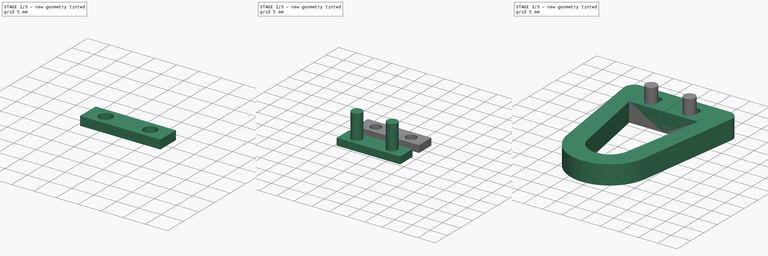
[diagram: build sequence overview — one tinted view per stage of 3, left to right]
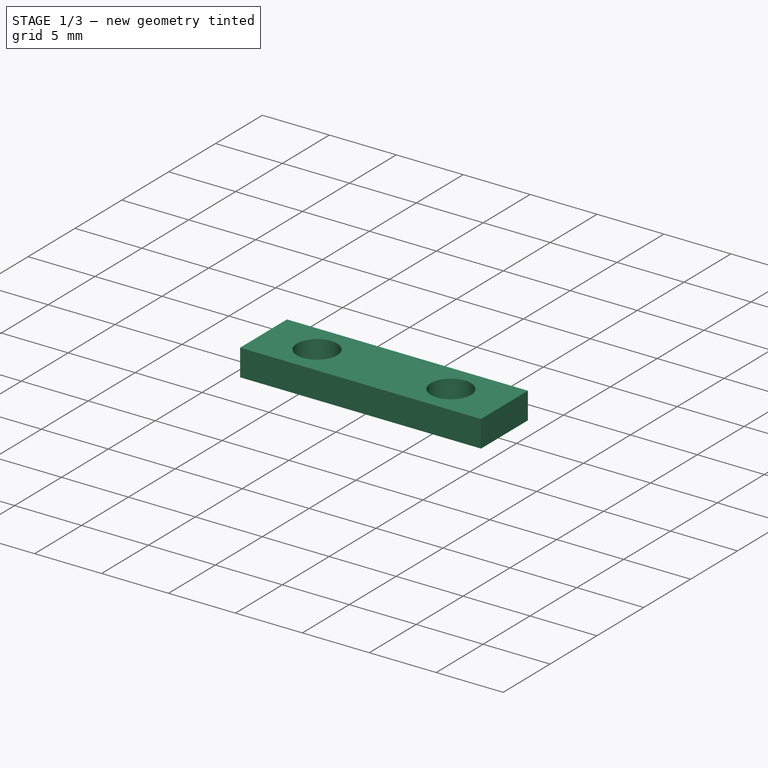
[diagram: stage 1 of 3 — iso view after this stage's code; geometry added in this stage tinted green]
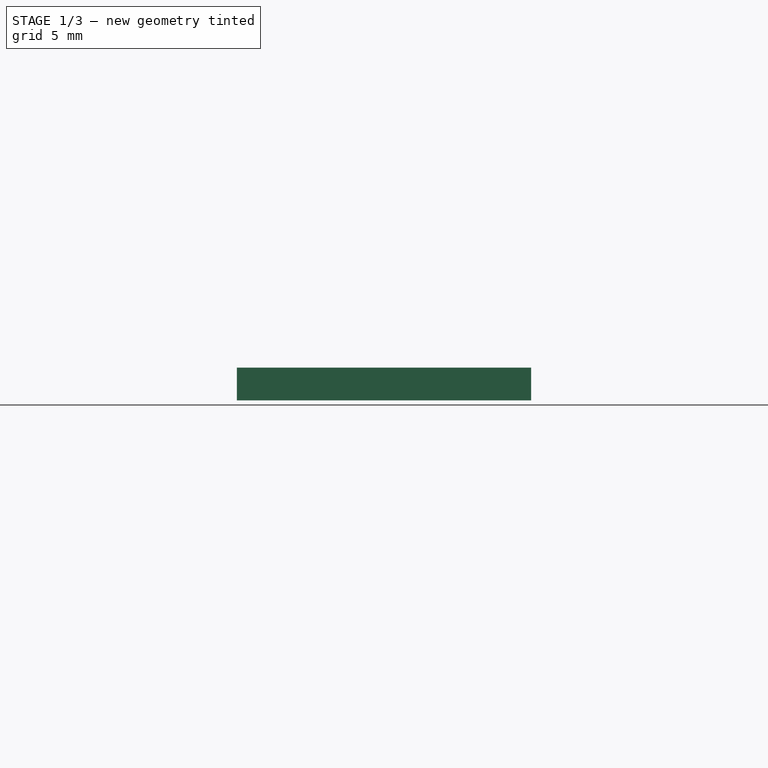
[diagram: stage 1 of 3 — front view after this stage's code; geometry added in this stage tinted green]
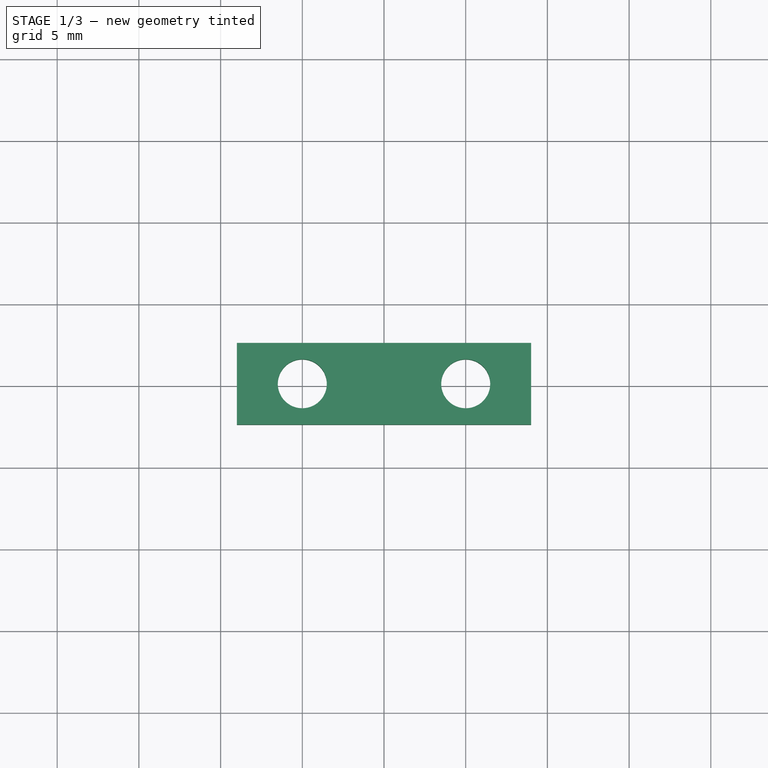
[diagram: stage 1 of 3 — top view after this stage's code; geometry added in this stage tinted green]
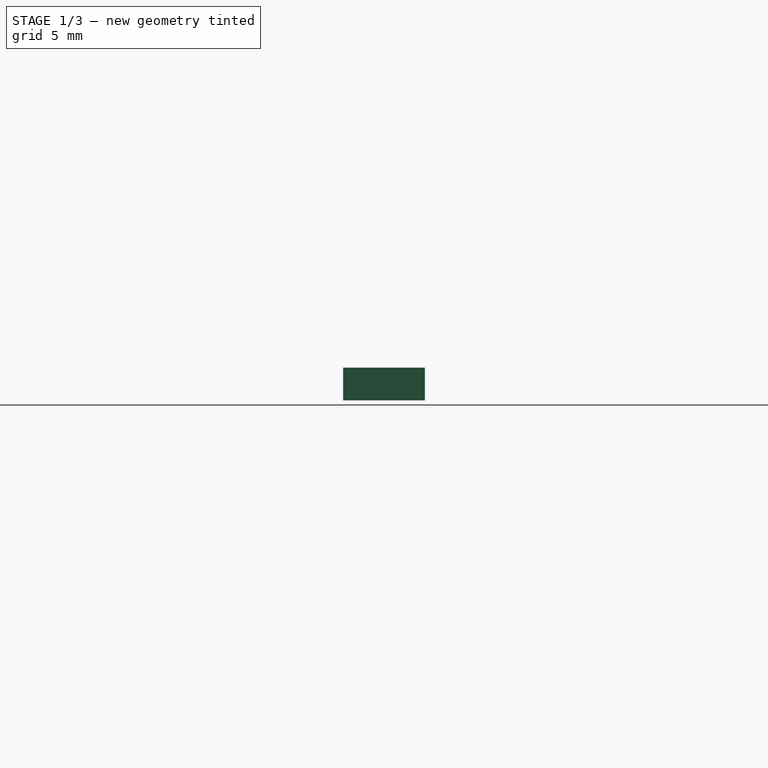
[diagram: stage 1 of 3 — right view after this stage's code; geometry added in this stage tinted green]
FCSTD DOCUMENT  (FreeCAD 0.20R25352 (Git))
Label: battery fastener
License: All rights reserved
LicenseURL: http://en.wikipedia.org/wiki/All_rights_reserved
objects: Sketcher::SketchObject×6, PartDesign::Pad×4, PartDesign::Body×3, PartDesign::Pocket×2
note: 21 computed .brp shape members not serialized (recipe doc carries the construction recipe); baked Part::Feature solids carry a one-line shape summary decoded from their .brp

FEATURE [PartDesign::Body] Body001
  Group = -> [Sketch002,Pad001,Sketch003,Pad002]
  Origin = -> Origin001
  Placement = pos=(0,27,10) rot=(0,0,1;0rad)
  Tip = -> Pad002
FEATURE [Sketcher::SketchObject] Sketch004
  FullyConstrained = false
  MapMode = 5
  Support = -> [XY_Plane002]
  sketch-geometry (4):
    g0: LineSegment StartX=-9 StartY=32.633 StartZ=0 EndX=9 EndY=32.633 EndZ=0
    g1: LineSegment StartX=9 StartY=32.633 StartZ=0 EndX=9 EndY=27.633 EndZ=0
    g2: LineSegment StartX=9 StartY=27.633 StartZ=0 EndX=-9 EndY=27.633 EndZ=0
    g3: LineSegment StartX=-9 StartY=27.633 StartZ=0 EndX=-9 EndY=32.633 EndZ=0
  constraints (10):
    c: Coincident(g0,g1)
    c: Coincident(g1,g2)
    c: Coincident(g2,g3)
    c: Coincident(g3,g0)
    c: Horizontal(g2)
    c: Vertical(g1)
    c: Vertical(g3)
    c: DistanceX(g2,g2) = 18
    c: DistanceY(g1,g1) = 5
    c: Symmetric(g0,g0,g-2)
FEATURE [PartDesign::Pad] Pad003
  Direction = (0,0,1)
  Length = 2
  Length2 = 100
  Profile = -> Sketch004
  Type = 0
FEATURE [Sketcher::SketchObject] Sketch005
  ExternalGeometry = -> [Pad003]
  FullyConstrained = true
  MapMode = 5
  Placement = pos=(0,0,2) rot=(0,0,1;0rad)
  Support = -> [Pad003]
  sketch-geometry (2):
    g0: Circle CenterX=-5 CenterY=30.133 CenterZ=0 NormalX=0 NormalY=0 NormalZ=1 AngleXU=0 Radius=1.5
    g1: Circle CenterX=5 CenterY=30.133 CenterZ=0 NormalX=0 NormalY=0 NormalZ=1 AngleXU=0 Radius=1.5
  constraints (5):
    c: Symmetric(g0,g1,g-2)
    c: Equal(g0,g1)
    c: Diameter(g0) = 3
    c: DistanceX(g0,g-1) = 5
    c: DistanceY(g-3,g0) = 2.5
FEATURE [PartDesign::Pocket] Pocket001
  BaseFeature = -> Pad003
  Length = 5
  Length2 = 100
  Profile = -> Sketch005
  Type = 0
FEATURE [PartDesign::Body] Body002
  Group = -> [Sketch004,Pad003,Sketch005,Pocket001]
  Origin = -> Origin002
  Placement = pos=(0,7,0) rot=(0,0,1;0rad)
  Tip = -> Pocket001
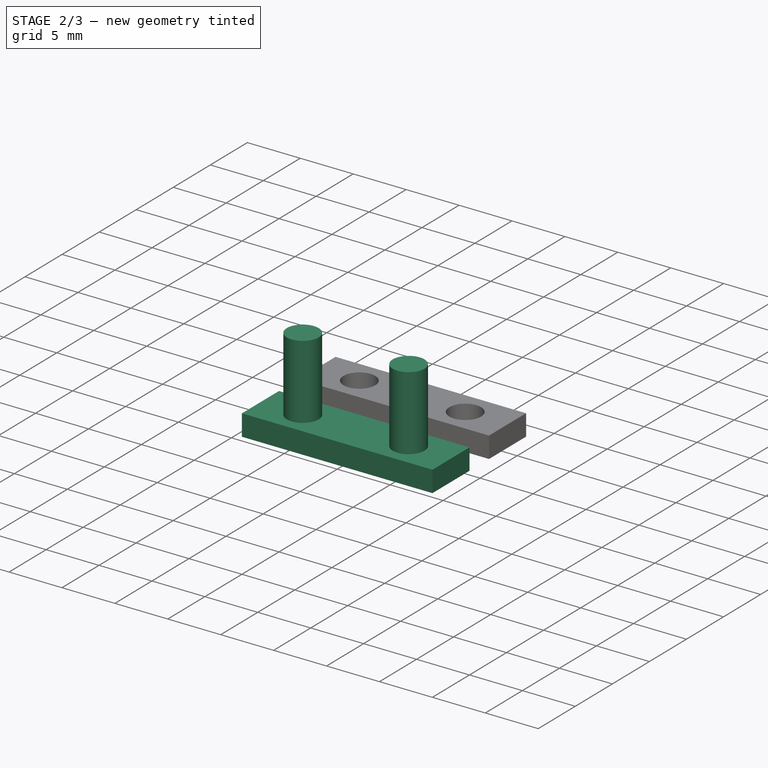
[diagram: stage 2 of 3 — iso view after this stage's code; geometry added in this stage tinted green]
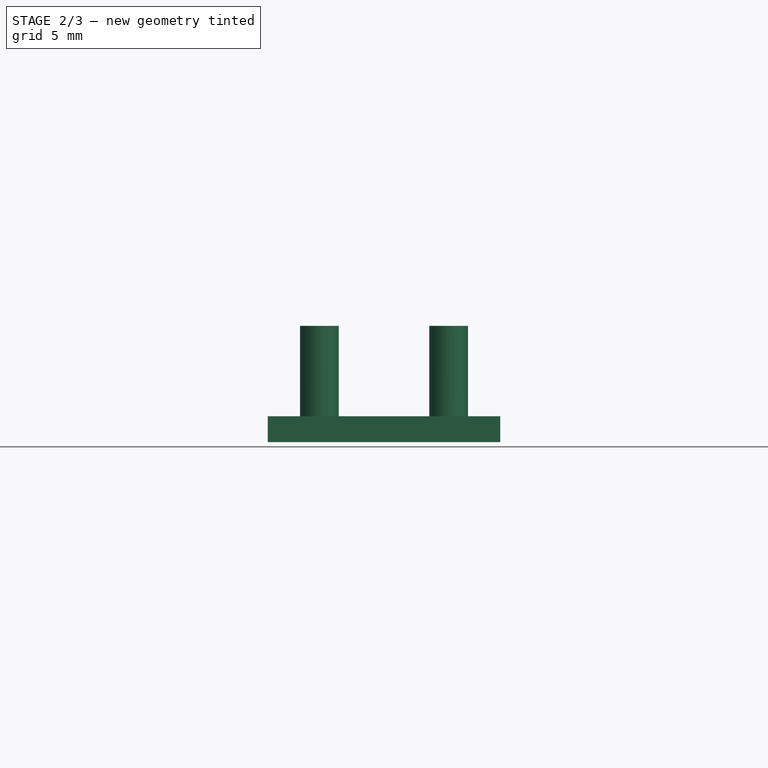
[diagram: stage 2 of 3 — front view after this stage's code; geometry added in this stage tinted green]
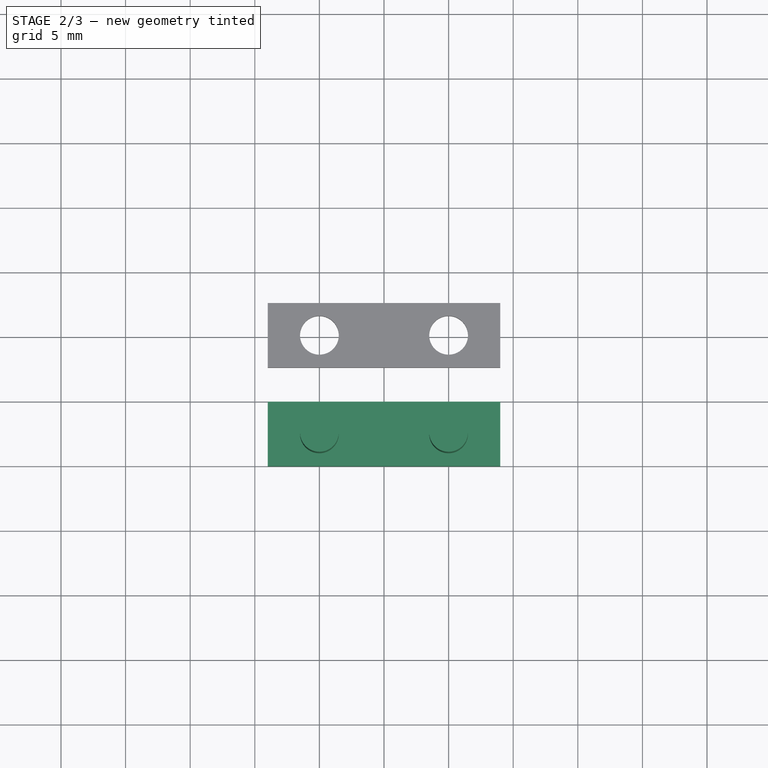
[diagram: stage 2 of 3 — top view after this stage's code; geometry added in this stage tinted green]
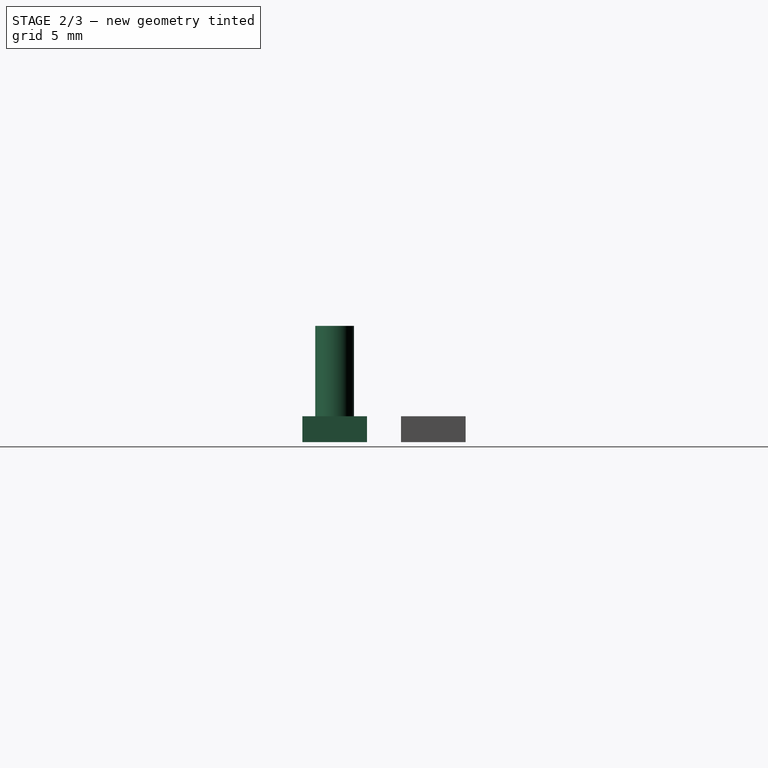
[diagram: stage 2 of 3 — right view after this stage's code; geometry added in this stage tinted green]
FEATURE [PartDesign::Body] Body
  Group = -> [Sketch,Pad,Sketch001,Pocket]
  Origin = -> Origin
  Tip = -> Pocket
FEATURE [Sketcher::SketchObject] Sketch002
  FullyConstrained = true
  MapMode = 5
  Support = -> [XY_Plane001]
  sketch-geometry (4):
    g0: LineSegment StartX=-9 StartY=25 StartZ=0 EndX=9 EndY=25 EndZ=0
    g1: LineSegment StartX=9 StartY=25 StartZ=0 EndX=9 EndY=20 EndZ=0
    g2: LineSegment StartX=9 StartY=20 StartZ=0 EndX=-9 EndY=20 EndZ=0
    g3: LineSegment StartX=-9 StartY=20 StartZ=0 EndX=-9 EndY=25 EndZ=0
  constraints (11):
    c: Coincident(g0,g1)
    c: Coincident(g1,g2)
    c: Coincident(g2,g3)
    c: Coincident(g3,g0)
    c: Horizontal(g0)
    c: Vertical(g1)
    c: Vertical(g3)
    c: DistanceY(g1,g1) = 5
    c: DistanceX(g2,g2) = 18
    c: Symmetric(g1,g2,g-2)
    c: DistanceY(g-1,g1) = 20
FEATURE [PartDesign::Pad] Pad001
  Direction = (0,0,1)
  Length = 2
  Length2 = 100
  Profile = -> Sketch002
  Type = 0
FEATURE [Sketcher::SketchObject] Sketch003
  FullyConstrained = false
  MapMode = 5
  Placement = pos=(0,0,2) rot=(0,0,1;0rad)
  Support = -> [Pad001]
  sketch-geometry (2):
    g0: Circle CenterX=-5 CenterY=22.4975 CenterZ=0 NormalX=0 NormalY=0 NormalZ=1 AngleXU=0 Radius=1.5
    g1: Circle CenterX=5 CenterY=22.4975 CenterZ=0 NormalX=0 NormalY=0 NormalZ=1 AngleXU=0 Radius=1.5
  constraints (4):
    c: DistanceX(g0,g-1) = 5
    c: Diameter(g0) = 3
    c: Equal(g0,g1)
    c: Symmetric(g1,g0,g-2)
FEATURE [PartDesign::Pad] Pad002
  BaseFeature = -> Pad001
  Direction = (0,0,1)
  Length = 7
  Length2 = 100
  Profile = -> Sketch003
  Type = 0
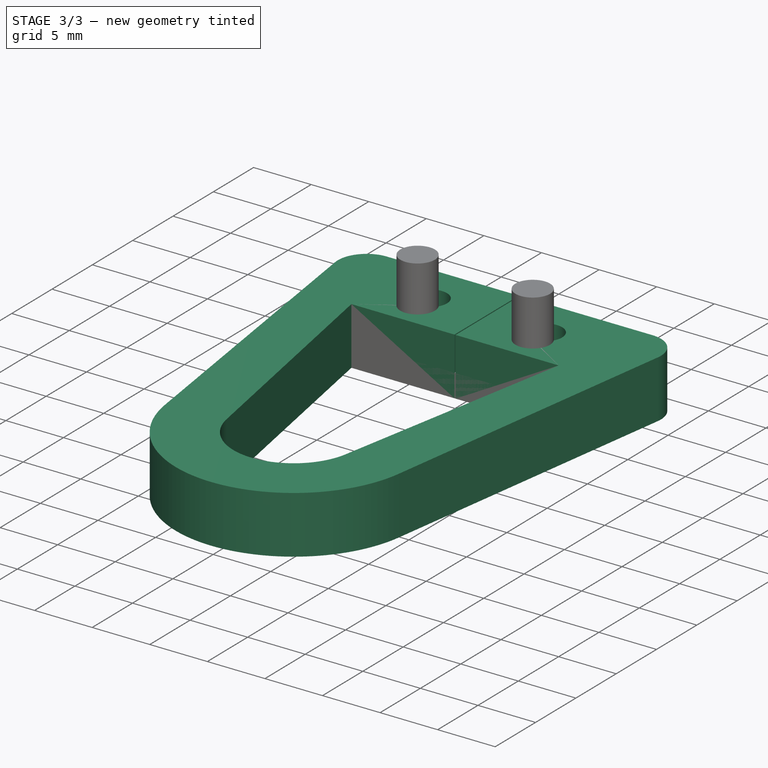
[diagram: stage 3 of 3 — iso view after this stage's code; geometry added in this stage tinted green]
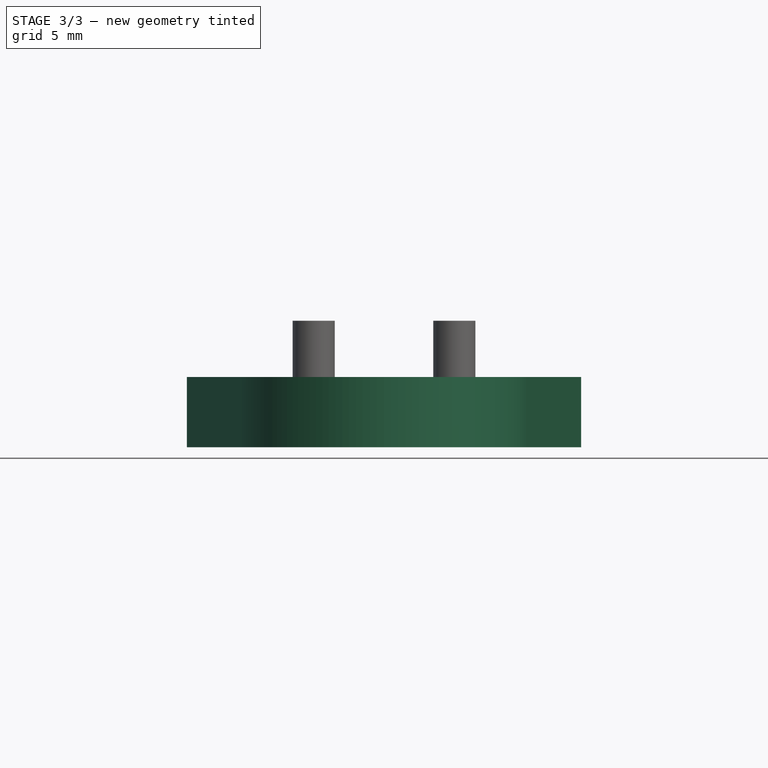
[diagram: stage 3 of 3 — front view after this stage's code; geometry added in this stage tinted green]
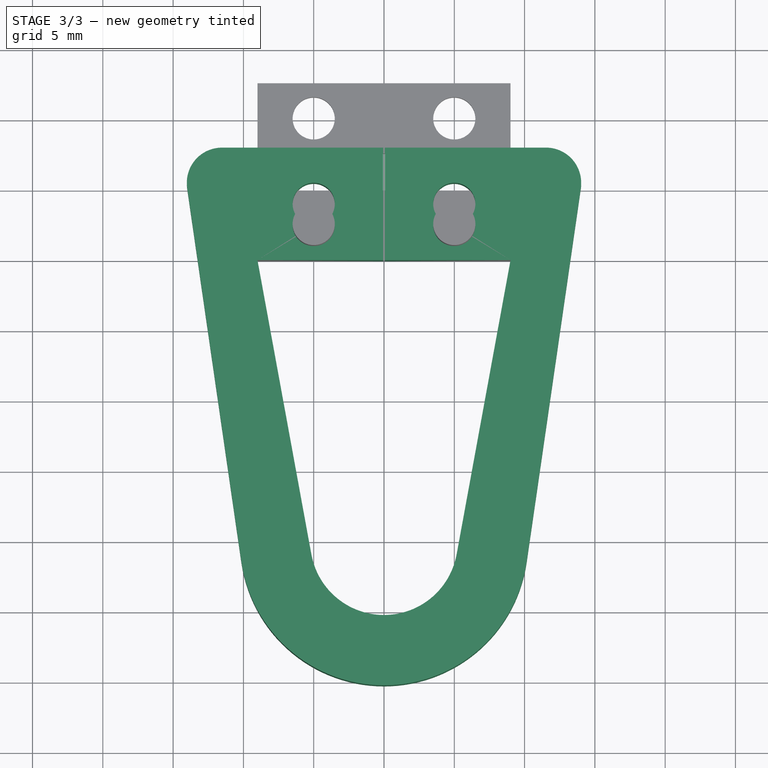
[diagram: stage 3 of 3 — top view after this stage's code; geometry added in this stage tinted green]
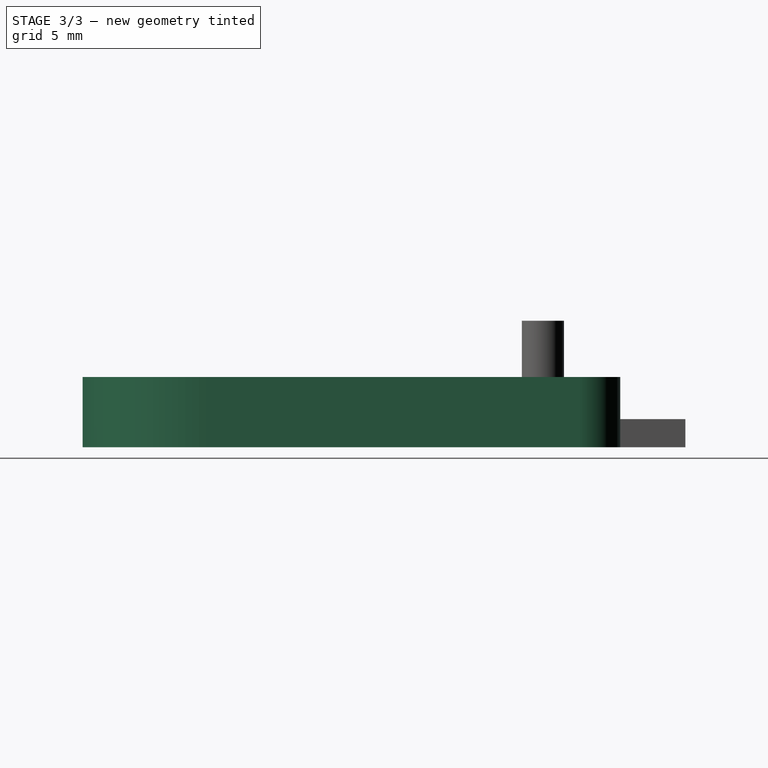
[diagram: stage 3 of 3 — right view after this stage's code; geometry added in this stage tinted green]
FEATURE [Sketcher::SketchObject] Sketch
  FullyConstrained = true
  MapMode = 5
  Support = -> [XY_Plane]
  sketch-geometry (15):
    g0: ArcOfCircle CenterX=0 CenterY=0 CenterZ=0 NormalX=0 NormalY=0 NormalZ=1 AngleXU=0 Radius=5.25 StartAngle=3.32272 EndAngle=6.10206
    g1: ArcOfCircle CenterX=0 CenterY=0 CenterZ=0 NormalX=0 NormalY=0 NormalZ=1 AngleXU=0 Radius=10.25 StartAngle=3.28549 EndAngle=6.13929
    g2: LineSegment StartX=0 StartY=-5.25 StartZ=0 EndX=0 EndY=-10.25 EndZ=0
    g3: ArcOfCircle CenterX=11.5258 CenterY=25.5 CenterZ=0 NormalX=0 NormalY=0 NormalZ=1 AngleXU=0 Radius=2.5 StartAngle=6.13929 EndAngle=7.85398
    g4: ArcOfCircle CenterX=-11.5258 CenterY=25.5 CenterZ=0 NormalX=0 NormalY=0 NormalZ=1 AngleXU=0 Radius=2.5 StartAngle=1.5708 EndAngle=3.28549
    g5: LineSegment StartX=14 StartY=25.1415 StartZ=0 EndX=10.1441 EndY=-1.46986 EndZ=0
    g6: LineSegment StartX=-10.1441 StartY=-1.46986 StartZ=0 EndX=-14 EndY=25.1415 EndZ=0
    g7: LineSegment StartX=-5.16412 StartY=-0.945727 StartZ=0 EndX=-9 EndY=20 EndZ=0
    g8: LineSegment StartX=9 StartY=20 StartZ=0 EndX=5.16412 EndY=-0.945727 EndZ=0
    g9: LineSegment StartX=11.5258 StartY=28 StartZ=0 EndX=0.05 EndY=28 EndZ=0
    g10: LineSegment StartX=0.05 StartY=28 StartZ=0 EndX=0.05 EndY=20 EndZ=0
    g11: LineSegment StartX=0.05 StartY=20 StartZ=0 EndX=9 EndY=20 EndZ=0
    g12: LineSegment StartX=-11.5258 StartY=28 StartZ=0 EndX=-0.05 EndY=28 EndZ=0
    g13: LineSegment StartX=-0.05 StartY=28 StartZ=0 EndX=-0.05 EndY=20 EndZ=0
    g14: LineSegment StartX=-0.05 StartY=20 StartZ=0 EndX=-9 EndY=20 EndZ=0
  constraints (39):
    c: Coincident(g0,g-1)
    c: Coincident(g1,g0)
    c: DistanceX(g7,g8) = 18
    c: Diameter(g0) = 10.5
    c: PointOnObject(g2,g0)
    c: PointOnObject(g2,g1)
    c: Vertical(g2)
    c: DistanceY(g2,g2) = 5
    c: Equal(g3,g4)
    c: Symmetric(g7,g8,g-2)
    c: Diameter(g4) = 5
    c: Tangent(g5,g1) = 1.5708
    c: Tangent(g5,g3) = 1.5708
    c: Tangent(g6,g4) = 1.5708
    c: Tangent(g6,g1) = 1.5708
    c: Tangent(g7,g0) = 1.5708
    c: Tangent(g0,g8) = 1.5708
    c: PointOnObject(g2,g-2)
    c: DistanceX(g8,g3) = 5
    c: Coincident(g3,g9)
    c: Horizontal(g9)
    c: Coincident(g9,g10)
    c: Vertical(g10)
    c: Coincident(g10,g11)
    c: Horizontal(g11)
    c: Coincident(g8,g11)
    c: Horizontal(g12)
    c: Coincident(g13,g12)
    c: Vertical(g13)
    c: Coincident(g14,g13)
    c: Coincident(g14,g7)
    c: Horizontal(g14)
    c: Equal(g12,g9)
    c: Symmetric(g12,g9,g-2)
    c: DistanceY(g13,g13) = 8
    c: DistanceX(g12,g9) = 0.1
    c: Equal(g6,g5)
    c: Tangent(g12,g4) = 1.5708
    c: DistanceY(g0,g7) = 20
FEATURE [PartDesign::Pad] Pad
  Direction = (0,0,1)
  Length = 5
  Length2 = 100
  Profile = -> Sketch
  Type = 0
FEATURE [Sketcher::SketchObject] Sketch001
  FullyConstrained = true
  MapMode = 5
  Placement = pos=(0,0,5) rot=(0,0,1;0rad)
  sketch-geometry (2):
    g0: Circle CenterX=-5 CenterY=24 CenterZ=0 NormalX=0 NormalY=0 NormalZ=1 AngleXU=0 Radius=1.5
    g1: Circle CenterX=5 CenterY=24 CenterZ=0 NormalX=0 NormalY=0 NormalZ=1 AngleXU=0 Radius=1.5
  constraints (5):
    c: Symmetric(g0,g1,g-2)
    c: Equal(g1,g0)
    c: Diameter(g0) = 3
    c: DistanceX(g0,g-1) = 5
    c: DistanceY(g-1,g0) = 24
FEATURE [PartDesign::Pocket] Pocket
  BaseFeature = -> Pad
  Length = 5
  Length2 = 100
  Profile = -> Sketch001
  Type = 1
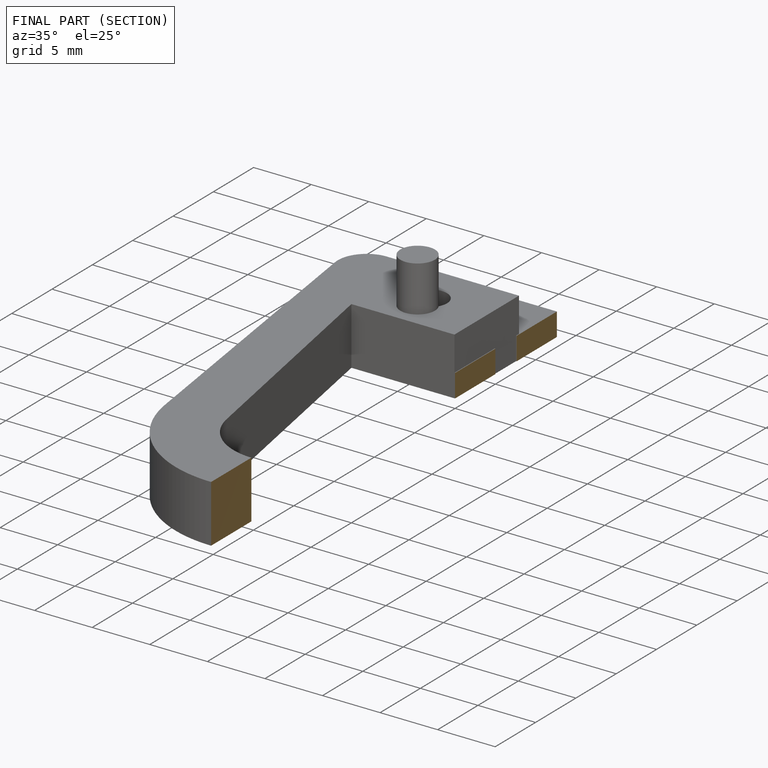
[diagram: finished part — half-section view (interior)]
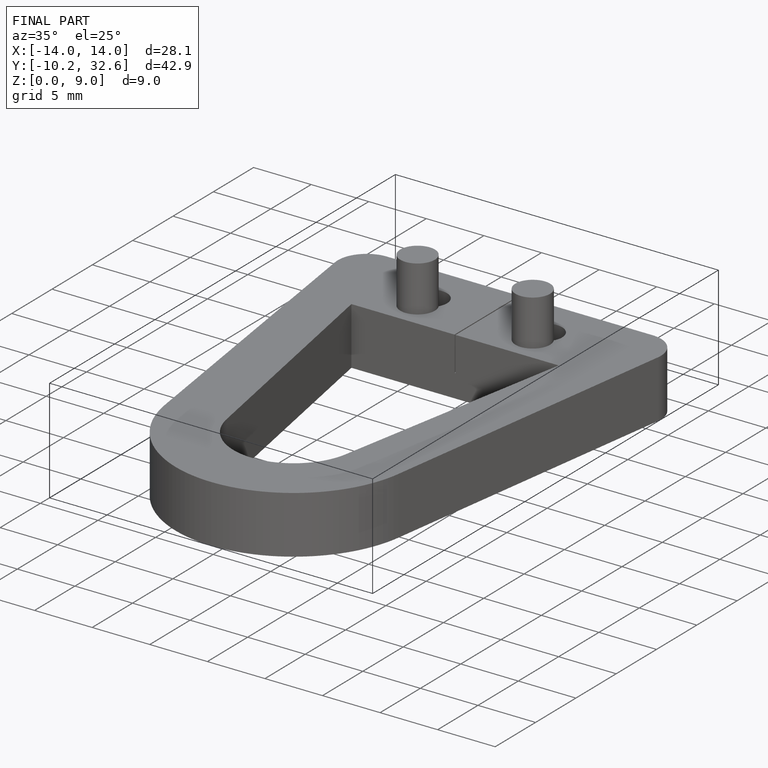
[diagram: finished part — iso view with bounding-box wireframe]
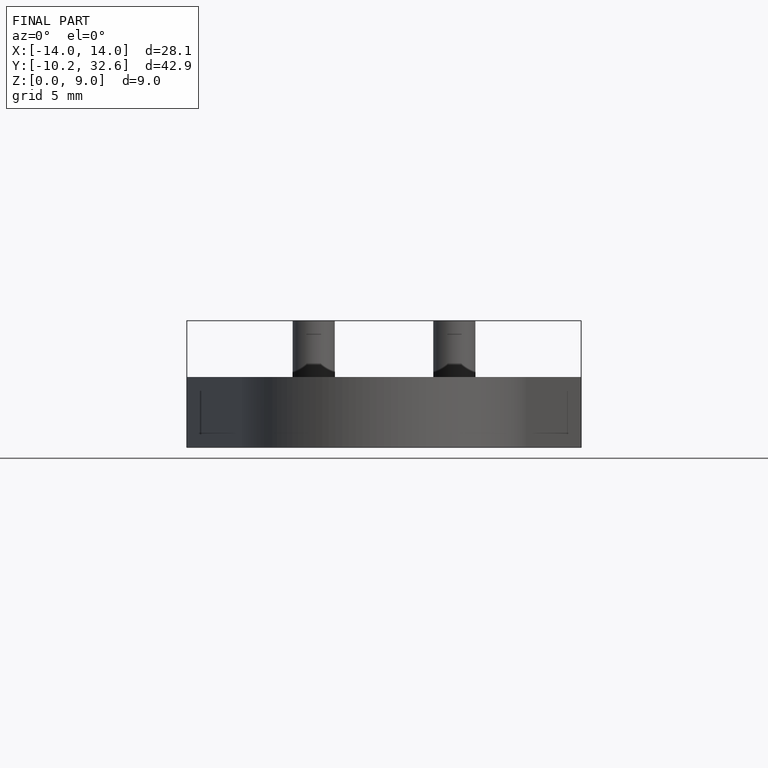
[diagram: finished part — front view with bounding-box wireframe]
